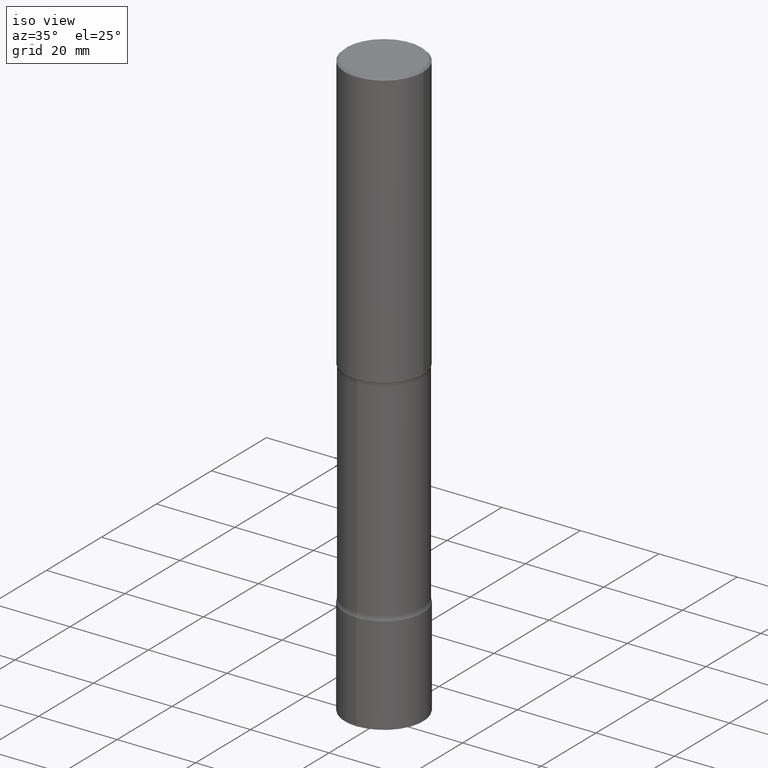
[diagram: clean part render]
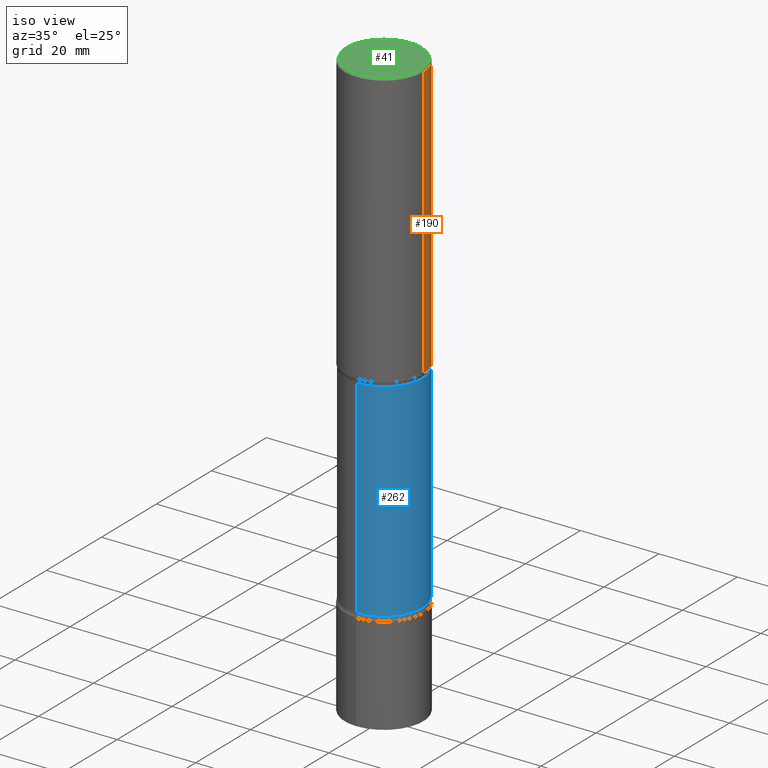
[diagram: same view with three faces highlighted in distinct colors, each labeled with its STEP entity id]
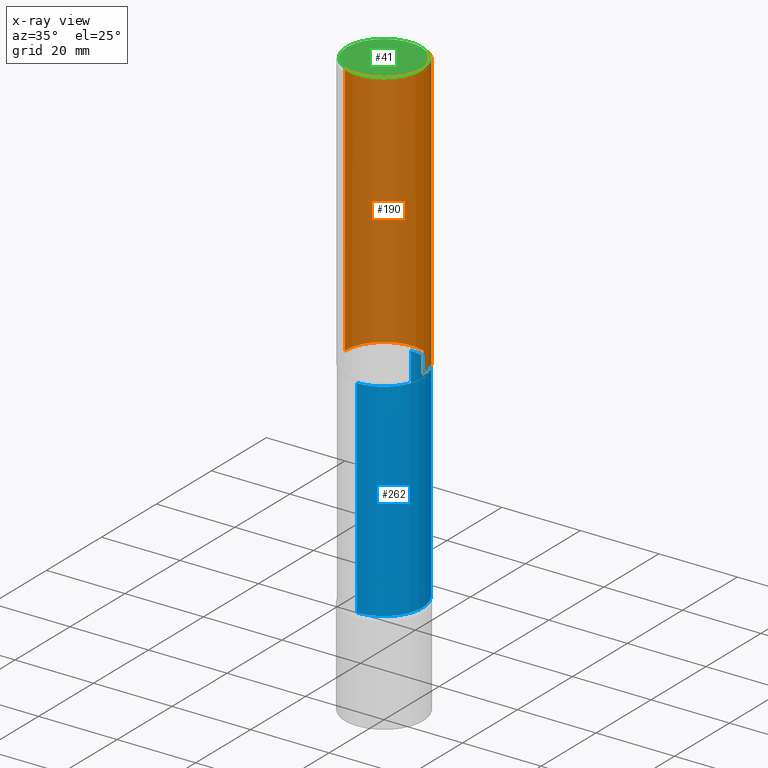
[diagram: x-ray of the same camera — body ghosted, the three highlighted faces saturated]
A machine part, iso view with three faces highlighted in distinct colors.
The next image is the same camera in x-ray (body ghosted, the three faces saturated) — at least one of them is partly hidden behind the body in this view.
Their STEP definitions:

[orange] entity #190 — the highlighted cylindrical surface (partial cylindrical patch) has radius 10 mm, axis along (-0, 0, 1).
#9 = DIRECTION ( 'NONE',  ( -2.445468806185136597E-29, 3.491481338843145583E-15, 1.000000000000000000 ) ) ;
#22 = DIRECTION ( 'NONE',  ( -2.445468806185136877E-29, 3.491481338843145188E-15, 1.000000000000000000 ) ) ;
#32 = VERTEX_POINT ( 'NONE', #393 ) ;
#50 = VERTEX_POINT ( 'NONE', #436 ) ;
#54 = CARTESIAN_POINT ( 'NONE',  ( 0.3936999999999998279, -2.749192406205082033E-15, 1.919750796630859051E-29 ) ) ;
#55 = ORIENTED_EDGE ( 'NONE', *, *, #257, .F. ) ;
#57 = DIRECTION ( 'NONE',  ( -2.445468806185136597E-29, 3.491481338843145583E-15, 1.000000000000000000 ) ) ;
#62 = CARTESIAN_POINT ( 'NONE',  ( 4.890937612370298557E-31, -6.982962677686327354E-17, -0.02000000000000010103 ) ) ;
#64 = DIRECTION ( 'NONE',  ( 1.000000000000000000, -6.982962677686267499E-15, 0.000000000000000000 ) ) ;
#71 = VECTOR ( 'NONE', #372, 39.37007874015748143 ) ;
#96 = CYLINDRICAL_SURFACE ( 'NONE', #487, 0.3936999999999998279 ) ;
#108 = CARTESIAN_POINT ( 'NONE',  ( 0.3936999999999996613, -2.770807688499512973E-15, -0.02000000000000010103 ) ) ;
#109 = ORIENTED_EDGE ( 'NONE', *, *, #395, .F. ) ;
#136 = DIRECTION ( 'NONE',  ( 1.000000000000000000, -6.982962677686266711E-15, 0.000000000000000000 ) ) ;
#164 = DIRECTION ( 'NONE',  ( 1.000000000000000000, -6.982962677686266711E-15, 4.876176775795935793E-29 ) ) ;
#176 = AXIS2_PLACEMENT_3D ( 'NONE', #422, #491, #64 ) ;
#190 = ADVANCED_FACE ( 'NONE', ( #292 ), #96, .T. ) ;
#257 = EDGE_CURVE ( 'NONE', #32, #470, #442, .T. ) ;
#285 = CARTESIAN_POINT ( 'NONE',  ( 0.000000000000000000, 0.000000000000000000, 0.000000000000000000 ) ) ;
#289 = VECTOR ( 'NONE', #22, 39.37007874015748143 ) ;
#292 = FACE_OUTER_BOUND ( 'NONE', #503, .T. ) ;
#307 = ORIENTED_EDGE ( 'NONE', *, *, #374, .T. ) ;
#316 = CIRCLE ( 'NONE', #482, 0.3936999999999996613 ) ;
#336 = CIRCLE ( 'NONE', #176, 0.3937000000000000499 ) ;
#350 = ORIENTED_EDGE ( 'NONE', *, *, #386, .T. ) ;
#372 = DIRECTION ( 'NONE',  ( -2.445468806185136877E-29, 3.491481338843145188E-15, 1.000000000000000000 ) ) ;
#374 = EDGE_CURVE ( 'NONE', #391, #50, #451, .T. ) ;
#386 = EDGE_CURVE ( 'NONE', #32, #391, #336, .T. ) ;
#391 = VERTEX_POINT ( 'NONE', #459 ) ;
#393 = CARTESIAN_POINT ( 'NONE',  ( 0.3937000000000000499, -1.237136582792290445E-14, -2.755899999999998684 ) ) ;
#395 = EDGE_CURVE ( 'NONE', #470, #50, #316, .T. ) ;
#422 = CARTESIAN_POINT ( 'NONE',  ( 6.739467482965615990E-29, -9.622173421717821235E-15, -2.755899999999998684 ) ) ;
#436 = CARTESIAN_POINT ( 'NONE',  ( -0.3936999999999996613, 2.679362779428217552E-15, -0.02000000000000010103 ) ) ;
#442 = LINE ( 'NONE', #54, #71 ) ;
#451 = LINE ( 'NONE', #496, #289 ) ;
#459 = CARTESIAN_POINT ( 'NONE',  ( -0.3937000000000000499, -2.048594773559825902E-15, -2.755899999999998684 ) ) ;
#470 = VERTEX_POINT ( 'NONE', #108 ) ;
#482 = AXIS2_PLACEMENT_3D ( 'NONE', #62, #57, #136 ) ;
#487 = AXIS2_PLACEMENT_3D ( 'NONE', #285, #9, #164 ) ;
#491 = DIRECTION ( 'NONE',  ( -2.445468806185136597E-29, 3.491481338843145583E-15, 1.000000000000000000 ) ) ;
#496 = CARTESIAN_POINT ( 'NONE',  ( -0.3936999999999998279, 2.797406750687513209E-15, -1.936584745033355614E-29 ) ) ;
#503 = EDGE_LOOP ( 'NONE', ( #350, #307, #109, #55 ) ) ;

[blue] entity #262 — the highlighted cylindrical surface (partial cylindrical patch) has radius 9.8095 mm, axis along (0, -0, -1).
#8 = CARTESIAN_POINT ( 'NONE',  ( -2.675251194230947803E-15, -0.3862000000000107014, -2.798546805273079308 ) ) ;
#16 = FACE_OUTER_BOUND ( 'NONE', #348, .T. ) ;
#19 = VECTOR ( 'NONE', #438, 39.37007874015748143 ) ;
#28 = EDGE_CURVE ( 'NONE', #423, #492, #403, .T. ) ;
#56 = CARTESIAN_POINT ( 'NONE',  ( 2.696820186122502796E-15, 0.3861999999999900512, -2.798546805273081528 ) ) ;
#66 = VERTEX_POINT ( 'NONE', #8 ) ;
#68 = LINE ( 'NONE', #143, #441 ) ;
#88 = CARTESIAN_POINT ( 'NONE',  ( 1.461158409090852594E-28, -2.037568232208236419E-14, -5.905500000000000860 ) ) ;
#112 = AXIS2_PLACEMENT_3D ( 'NONE', #88, #414, #327 ) ;
#138 = DIRECTION ( 'NONE',  ( 6.982962677686265922E-15, 1.000000000000000000, -2.829464519590119711E-15 ) ) ;
#143 = CARTESIAN_POINT ( 'NONE',  ( -2.649524326739221477E-15, -0.3862000000000207489, -5.905499999999999972 ) ) ;
#146 = ORIENTED_EDGE ( 'NONE', *, *, #208, .F. ) ;
#147 = CIRCLE ( 'NONE', #421, 0.3862000000000003763 ) ;
#159 = DIRECTION ( 'NONE',  ( 2.624012579823737835E-29, -3.235796492912163733E-15, -1.000000000000000000 ) ) ;
#178 = ORIENTED_EDGE ( 'NONE', *, *, #456, .T. ) ;
#208 = EDGE_CURVE ( 'NONE', #266, #423, #485, .T. ) ;
#251 = CARTESIAN_POINT ( 'NONE',  ( 2.696820186122584443E-15, 0.3861999999999800037, -5.905500000000001748 ) ) ;
#256 = CYLINDRICAL_SURFACE ( 'NONE', #112, 0.3862000000000003763 ) ;
#262 = ADVANCED_FACE ( 'NONE', ( #16 ), #256, .T. ) ;
#266 = VERTEX_POINT ( 'NONE', #56 ) ;
#277 = ORIENTED_EDGE ( 'NONE', *, *, #291, .T. ) ;
#279 = AXIS2_PLACEMENT_3D ( 'NONE', #325, #159, #319 ) ;
#291 = EDGE_CURVE ( 'NONE', #266, #66, #147, .T. ) ;
#310 = CARTESIAN_POINT ( 'NONE',  ( 2.696820186122558016E-15, 0.3861999999999833899, -4.878553194726921838 ) ) ;
#312 = DIRECTION ( 'NONE',  ( 2.624012579823737835E-29, -3.235796492912164127E-15, -1.000000000000000000 ) ) ;
#319 = DIRECTION ( 'NONE',  ( 6.982962677686265922E-15, 1.000000000000000000, -2.829464519590119317E-15 ) ) ;
#325 = CARTESIAN_POINT ( 'NONE',  ( 1.191686275506216771E-28, -1.705269145117238333E-14, -4.878553194726920950 ) ) ;
#327 = DIRECTION ( 'NONE',  ( 6.982962677686265922E-15, 1.000000000000000000, -2.829464519590119711E-15 ) ) ;
#330 = ORIENTED_EDGE ( 'NONE', *, *, #28, .F. ) ;
#348 = EDGE_LOOP ( 'NONE', ( #277, #178, #330, #146 ) ) ;
#390 = CARTESIAN_POINT ( 'NONE',  ( 6.458899823021536649E-29, -1.032221407094275446E-14, -2.798546805273080640 ) ) ;
#403 = CIRCLE ( 'NONE', #279, 0.3862000000000004318 ) ;
#414 = DIRECTION ( 'NONE',  ( 2.624012579823737835E-29, -3.235796492912163733E-15, -1.000000000000000000 ) ) ;
#419 = DIRECTION ( 'NONE',  ( 2.624012579823737835E-29, -3.235796492912163733E-15, -1.000000000000000000 ) ) ;
#421 = AXIS2_PLACEMENT_3D ( 'NONE', #390, #419, #138 ) ;
#423 = VERTEX_POINT ( 'NONE', #310 ) ;
#435 = CARTESIAN_POINT ( 'NONE',  ( -2.675251194230890216E-15, -0.3862000000000175293, -4.878553194726920061 ) ) ;
#438 = DIRECTION ( 'NONE',  ( 2.624012579823737835E-29, -3.235796492912164127E-15, -1.000000000000000000 ) ) ;
#441 = VECTOR ( 'NONE', #312, 39.37007874015748143 ) ;
#456 = EDGE_CURVE ( 'NONE', #66, #492, #68, .T. ) ;
#485 = LINE ( 'NONE', #251, #19 ) ;
#492 = VERTEX_POINT ( 'NONE', #435 ) ;

[green] entity #41 — the highlighted planar face has unit normal (0, -0, -1).
#3 = EDGE_LOOP ( 'NONE', ( #216, #498 ) ) ;
#41 = ADVANCED_FACE ( 'NONE', ( #465 ), #437, .F. ) ;
#94 = CIRCLE ( 'NONE', #480, 0.3736999999999996436 ) ;
#97 = DIRECTION ( 'NONE',  ( -2.445468806185136597E-29, 3.491481338843145583E-15, 1.000000000000000000 ) ) ;
#114 = DIRECTION ( 'NONE',  ( -2.445468806185136597E-29, 3.491481338843145583E-15, 1.000000000000000000 ) ) ;
#131 = CARTESIAN_POINT ( 'NONE',  ( -0.3736999999999996436, 2.644447966039786297E-15, 8.537024980182450727E-18 ) ) ;
#150 = CIRCLE ( 'NONE', #352, 0.3736999999999996436 ) ;
#152 = EDGE_CURVE ( 'NONE', #201, #357, #94, .T. ) ;
#192 = DIRECTION ( 'NONE',  ( 1.000000000000000000, -6.982962677686266711E-15, 4.876212485538980163E-29 ) ) ;
#196 = AXIS2_PLACEMENT_3D ( 'NONE', #463, #198, #434 ) ;
#198 = DIRECTION ( 'NONE',  ( 2.438088387897960049E-29, -3.491481338843145188E-15, -1.000000000000000000 ) ) ;
#201 = VERTEX_POINT ( 'NONE', #131 ) ;
#216 = ORIENTED_EDGE ( 'NONE', *, *, #152, .T. ) ;
#270 = CARTESIAN_POINT ( 'NONE',  ( -2.087702828670439639E-46, 2.980686340760894400E-32, 8.537024980200822558E-18 ) ) ;
#333 = CARTESIAN_POINT ( 'NONE',  ( 0.3736999999999996436, -2.667287895133365992E-15, 8.537024980219274507E-18 ) ) ;
#352 = AXIS2_PLACEMENT_3D ( 'NONE', #270, #97, #469 ) ;
#357 = VERTEX_POINT ( 'NONE', #333 ) ;
#397 = CARTESIAN_POINT ( 'NONE',  ( -2.087702828670439639E-46, 2.980686340760894400E-32, 8.537024980200822558E-18 ) ) ;
#434 = DIRECTION ( 'NONE',  ( -1.000000000000000000, 6.982962677686265922E-15, -4.876176775795935793E-29 ) ) ;
#437 = PLANE ( 'NONE',  #196 ) ;
#463 = CARTESIAN_POINT ( 'NONE',  ( 2.609533152651354648E-15, 0.3736999999999996436, -1.300498063835581828E-15 ) ) ;
#465 = FACE_OUTER_BOUND ( 'NONE', #3, .T. ) ;
#469 = DIRECTION ( 'NONE',  ( 1.000000000000000000, -6.982962677686266711E-15, 4.876212485538980163E-29 ) ) ;
#480 = AXIS2_PLACEMENT_3D ( 'NONE', #397, #114, #192 ) ;
#489 = EDGE_CURVE ( 'NONE', #357, #201, #150, .T. ) ;
#498 = ORIENTED_EDGE ( 'NONE', *, *, #489, .T. ) ;